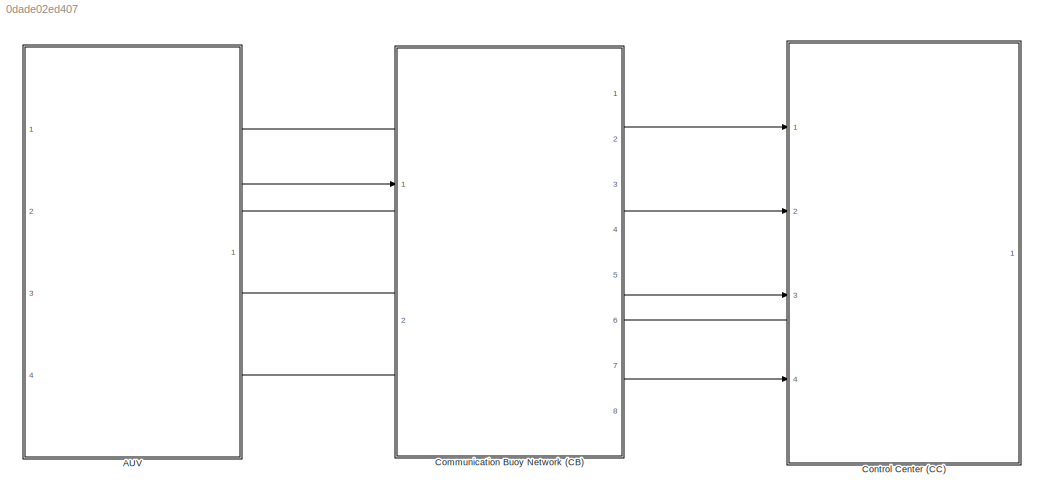
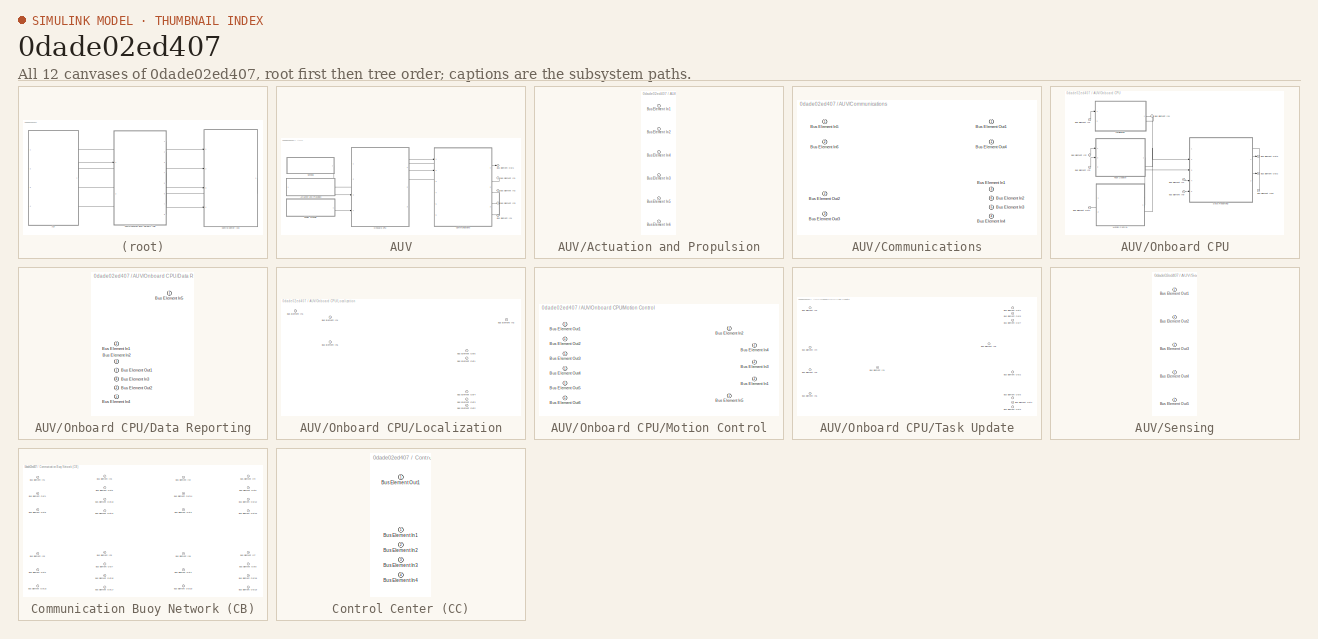
[diagram: thumbnail index - all 12 canvases of the model, root first then tree order]
MODEL slx_0dade02ed407
KIND model
CONFIG AbsTol = auto
CONFIG EnableMultiTasking = off
CONFIG FixedStep = auto
CONFIG MaxStep = auto
CONFIG MinStep = auto
CONFIG RelTol = 1e-3
CONFIG SampleTimeConstraint = Unconstrained
CONFIG SolverName = VariableStepAuto
CONFIG StartTime = 0.0
CONFIG StopTime = 10.0
BLOCK [SubSystem] AUV
  PortSchema = {"entries":[{"content":{"headerSize":26,"margin":15,"minimumSpacing":25,"sides":[{"content":{"connectorIds":[]},"type":"ConnectorPlacement.EquallySpacedRectSide","uuid":"7765e1d4-0dc4-4e3a-8ace-6707e97be0d4"},{"content":{"connectorIds":["Out1","In1","In2","In3","In4"],"side":"RIGHT"},"type":"ConnectorPlacement.EquallySpacedRectSide","uuid":"17453679-37e1-41d9-ae4d-157eecb5c7d5"},{"content":{"conne...<+451ch>
  Ports = [4, 1]
  RequestExecContextInheritance = off
BLOCK [SubSystem] AUV/Actuation and Propulsion
  PortSchema = {"entries":[{"content":{"headerSize":26,"margin":15,"minimumSpacing":25,"sides":[{"content":{"connectorIds":[]},"type":"ConnectorPlacement.EquallySpacedRectSide","uuid":"7765e1d4-0dc4-4e3a-8ace-6707e97be0d4"},{"content":{"connectorIds":["In1"],"side":"RIGHT"},"type":"ConnectorPlacement.EquallySpacedRectSide","uuid":"17453679-37e1-41d9-ae4d-157eecb5c7d5"},{"content":{"connectorIds":[],"side":"TOP"}...<+426ch>
  Ports = [1]
  RequestExecContextInheritance = off
BLOCK [Inport] AUV/Actuation and Propulsion/Bus Element In1
BLOCK [Inport] AUV/Actuation and Propulsion/Bus Element In2
BLOCK [Inport] AUV/Actuation and Propulsion/Bus Element In3
BLOCK [Inport] AUV/Actuation and Propulsion/Bus Element In4
BLOCK [Inport] AUV/Actuation and Propulsion/Bus Element In5
BLOCK [Inport] AUV/Actuation and Propulsion/Bus Element In6
BLOCK [Inport] AUV/Bus Element In1
BLOCK [Inport] AUV/Bus Element In2
  Port = 2
BLOCK [Inport] AUV/Bus Element In3
  Port = 3
BLOCK [Inport] AUV/Bus Element In4
  Port = 4
BLOCK [Outport] AUV/Bus Element Out1
BLOCK [SubSystem] AUV/Communications
  PortSchema = {"entries":[{"content":{"headerSize":26,"margin":15,"minimumSpacing":25,"sides":[{"content":{"connectorIds":["In1","In2","Out2","Out3"]},"type":"ConnectorPlacement.EquallySpacedRectSide","uuid":"5928ce2f-b7da-4eaf-83b8-f1dfd8275719"},{"content":{"connectorIds":["Out1","In3","In6","In5","In4"],"side":"RIGHT"},"type":"ConnectorPlacement.EquallySpacedRectSide","uuid":"1e52cfd1-9d99-4f69-bb2a-b495e37c...<+476ch>
  Ports = [6, 3]
  RequestExecContextInheritance = off
BLOCK [Inport] AUV/Communications/Bus Element In1
  Port = 3
BLOCK [Inport] AUV/Communications/Bus Element In2
  Port = 6
BLOCK [Inport] AUV/Communications/Bus Element In3
  Port = 5
BLOCK [Inport] AUV/Communications/Bus Element In4
  Port = 4
BLOCK [Inport] AUV/Communications/Bus Element In5
BLOCK [Inport] AUV/Communications/Bus Element In6
  Port = 2
BLOCK [Outport] AUV/Communications/Bus Element Out1
BLOCK [Outport] AUV/Communications/Bus Element Out2
  Port = 2
BLOCK [Outport] AUV/Communications/Bus Element Out3
  Port = 3
BLOCK [Outport] AUV/Communications/Bus Element Out4
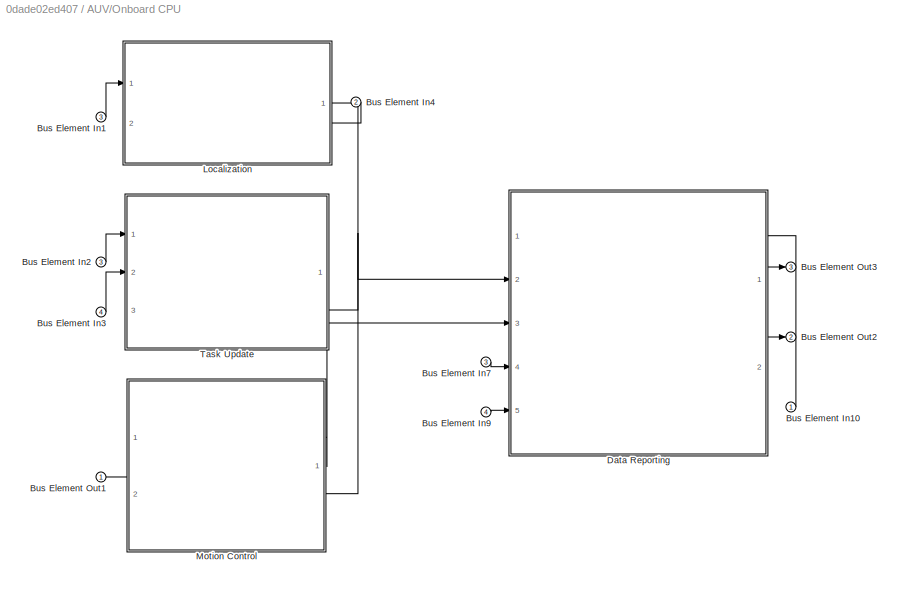
BLOCK [SubSystem] AUV/Onboard CPU
  PortSchema = {"entries":[{"content":{"headerSize":26,"margin":15,"minimumSpacing":25,"sides":[{"content":{"connectorIds":["In3","Out1","In4"]},"type":"ConnectorPlacement.EquallySpacedRectSide","uuid":"7765e1d4-0dc4-4e3a-8ace-6707e97be0d4"},{"content":{"connectorIds":["Out3","Out2","In1","In2"],"side":"RIGHT"},"type":"ConnectorPlacement.EquallySpacedRectSide","uuid":"17453679-37e1-41d9-ae4d-157eecb5c7d5"},{"con...<+464ch>
  Ports = [4, 3]
  RequestExecContextInheritance = off
BLOCK [Inport] AUV/Onboard CPU/Bus Element In1
  Port = 3
BLOCK [Inport] AUV/Onboard CPU/Bus Element In10
BLOCK [Inport] AUV/Onboard CPU/Bus Element In2
  Port = 3
BLOCK [Inport] AUV/Onboard CPU/Bus Element In3
  Port = 4
BLOCK [Inport] AUV/Onboard CPU/Bus Element In4
  Port = 2
BLOCK [Inport] AUV/Onboard CPU/Bus Element In7
  Port = 3
BLOCK [Inport] AUV/Onboard CPU/Bus Element In9
  Port = 4
BLOCK [Outport] AUV/Onboard CPU/Bus Element Out1
BLOCK [Outport] AUV/Onboard CPU/Bus Element Out2
  Port = 2
BLOCK [Outport] AUV/Onboard CPU/Bus Element Out3
  Port = 3
BLOCK [SubSystem] AUV/Onboard CPU/Data Reporting
  PortSchema = {"entries":[{"content":{"headerSize":26,"margin":15,"minimumSpacing":25,"sides":[{"content":{"connectorIds":["In2","In3","In4","In5"]},"type":"ConnectorPlacement.EquallySpacedRectSide","uuid":"6e074b9a-b44f-4117-a210-2e4c10325222"},{"content":{"connectorIds":["Out1","Out2","In1"],"side":"RIGHT"},"type":"ConnectorPlacement.EquallySpacedRectSide","uuid":"4713ac81-953f-4b10-9848-f535a4d44b72"},{"cont...<+463ch>
  Ports = [5, 2]
  RequestExecContextInheritance = off
BLOCK [Inport] AUV/Onboard CPU/Data Reporting/Bus Element In1
  Port = 2
BLOCK [Inport] AUV/Onboard CPU/Data Reporting/Bus Element In2
  Port = 3
BLOCK [Inport] AUV/Onboard CPU/Data Reporting/Bus Element In3
  Port = 4
BLOCK [Inport] AUV/Onboard CPU/Data Reporting/Bus Element In4
  Port = 5
BLOCK [Inport] AUV/Onboard CPU/Data Reporting/Bus Element In5
BLOCK [Outport] AUV/Onboard CPU/Data Reporting/Bus Element Out1
BLOCK [Outport] AUV/Onboard CPU/Data Reporting/Bus Element Out2
  Port = 2
BLOCK [SubSystem] AUV/Onboard CPU/Localization
  PortSchema = {"entries":[{"content":{"headerSize":26,"margin":15,"minimumSpacing":25,"sides":[{"content":{"connectorIds":["In1"]},"type":"ConnectorPlacement.EquallySpacedRectSide","uuid":"d7fd4b25-d7f9-480e-9c1f-219c1b7124b0"},{"content":{"connectorIds":["In2","Out1"],"side":"RIGHT"},"type":"ConnectorPlacement.EquallySpacedRectSide","uuid":"9844324b-a41b-4b87-b09a-567239ca4ffd"},{"content":{"connectorIds":[],"...<+582ch>
  Ports = [2, 1]
  RequestExecContextInheritance = off
BLOCK [Inport] AUV/Onboard CPU/Localization/Bus Element In1
BLOCK [Inport] AUV/Onboard CPU/Localization/Bus Element In2
  Port = 2
BLOCK [Inport] AUV/Onboard CPU/Localization/Bus Element In4
BLOCK [Inport] AUV/Onboard CPU/Localization/Bus Element In5
BLOCK [Outport] AUV/Onboard CPU/Localization/Bus Element Out1
BLOCK [Outport] AUV/Onboard CPU/Localization/Bus Element Out2
BLOCK [Outport] AUV/Onboard CPU/Localization/Bus Element Out3
BLOCK [Outport] AUV/Onboard CPU/Localization/Bus Element Out4
BLOCK [Outport] AUV/Onboard CPU/Localization/Bus Element Out5
BLOCK [SubSystem] AUV/Onboard CPU/Motion Control
  PortSchema = {"entries":[{"content":{"headerSize":26,"margin":15,"minimumSpacing":25,"sides":[{"content":{"connectorIds":["Out1"]},"type":"ConnectorPlacement.EquallySpacedRectSide","uuid":"d7fd4b25-d7f9-480e-9c1f-219c1b7124b0"},{"content":{"connectorIds":["In2","In1"],"side":"RIGHT"},"type":"ConnectorPlacement.EquallySpacedRectSide","uuid":"9844324b-a41b-4b87-b09a-567239ca4ffd"},{"content":{"connectorIds":[],"...<+438ch>
  Ports = [2, 1]
  RequestExecContextInheritance = off
BLOCK [Inport] AUV/Onboard CPU/Motion Control/Bus Element In1
  Port = 2
BLOCK [Inport] AUV/Onboard CPU/Motion Control/Bus Element In2
BLOCK [Inport] AUV/Onboard CPU/Motion Control/Bus Element In3
  Port = 2
BLOCK [Inport] AUV/Onboard CPU/Motion Control/Bus Element In4
  Port = 2
BLOCK [Inport] AUV/Onboard CPU/Motion Control/Bus Element In5
BLOCK [Outport] AUV/Onboard CPU/Motion Control/Bus Element Out1
BLOCK [Outport] AUV/Onboard CPU/Motion Control/Bus Element Out2
BLOCK [Outport] AUV/Onboard CPU/Motion Control/Bus Element Out3
BLOCK [Outport] AUV/Onboard CPU/Motion Control/Bus Element Out4
BLOCK [Outport] AUV/Onboard CPU/Motion Control/Bus Element Out5
BLOCK [Outport] AUV/Onboard CPU/Motion Control/Bus Element Out6
BLOCK [SubSystem] AUV/Onboard CPU/Task Update
  PortSchema = {"entries":[{"content":{"headerSize":26,"margin":15,"minimumSpacing":25,"sides":[{"content":{"connectorIds":["In1","In2"]},"type":"ConnectorPlacement.EquallySpacedRectSide","uuid":"d7fd4b25-d7f9-480e-9c1f-219c1b7124b0"},{"content":{"connectorIds":["In3","Out1"],"side":"RIGHT"},"type":"ConnectorPlacement.EquallySpacedRectSide","uuid":"9844324b-a41b-4b87-b09a-567239ca4ffd"},{"content":{"connectorIds...<+588ch>
  Ports = [3, 1]
  RequestExecContextInheritance = off
BLOCK [Inport] AUV/Onboard CPU/Task Update/Bus Element In1
  Port = 3
BLOCK [Inport] AUV/Onboard CPU/Task Update/Bus Element In2
BLOCK [Inport] AUV/Onboard CPU/Task Update/Bus Element In3
  Port = 2
BLOCK [Inport] AUV/Onboard CPU/Task Update/Bus Element In4
BLOCK [Inport] AUV/Onboard CPU/Task Update/Bus Element In5
BLOCK [Inport] AUV/Onboard CPU/Task Update/Bus Element In6
  Port = 3
BLOCK [Outport] AUV/Onboard CPU/Task Update/Bus Element Out1
BLOCK [Outport] AUV/Onboard CPU/Task Update/Bus Element Out2
BLOCK [Outport] AUV/Onboard CPU/Task Update/Bus Element Out3
BLOCK [Outport] AUV/Onboard CPU/Task Update/Bus Element Out4
BLOCK [Outport] AUV/Onboard CPU/Task Update/Bus Element Out5
BLOCK [Outport] AUV/Onboard CPU/Task Update/Bus Element Out6
BLOCK [Outport] AUV/Onboard CPU/Task Update/Bus Element Out7
BLOCK [ModelReference] AUV/Power Module
  ModelNameDialog = AUV_PM
  ModelReferenceVersion = 1.7
  PortSchema = {"entries":[{"content":{"headerSize":38,"margin":15,"minimumSpacing":25,"sides":[{"content":{"connectorIds":[]},"type":"ConnectorPlacement.EquallySpacedRectSide","uuid":"7765e1d4-0dc4-4e3a-8ace-6707e97be0d4"},{"content":{"connectorIds":["Out1"],"side":"RIGHT"},"type":"ConnectorPlacement.EquallySpacedRectSide","uuid":"17453679-37e1-41d9-ae4d-157eecb5c7d5"},{"content":{"connectorIds":[],"side":"TOP"...<+427ch>
  Ports = [0, 1]
BLOCK [SubSystem] AUV/Sensing
  PortSchema = {"entries":[{"content":{"headerSize":26,"margin":15,"minimumSpacing":25,"sides":[{"content":{"connectorIds":[]},"type":"ConnectorPlacement.EquallySpacedRectSide","uuid":"7765e1d4-0dc4-4e3a-8ace-6707e97be0d4"},{"content":{"connectorIds":["Out1"],"side":"RIGHT"},"type":"ConnectorPlacement.EquallySpacedRectSide","uuid":"17453679-37e1-41d9-ae4d-157eecb5c7d5"},{"content":{"connectorIds":[],"side":"TOP"...<+427ch>
  Ports = [0, 1]
  RequestExecContextInheritance = off
BLOCK [Outport] AUV/Sensing/Bus Element Out1
BLOCK [Outport] AUV/Sensing/Bus Element Out2
BLOCK [Outport] AUV/Sensing/Bus Element Out3
BLOCK [Outport] AUV/Sensing/Bus Element Out4
BLOCK [Outport] AUV/Sensing/Bus Element Out5
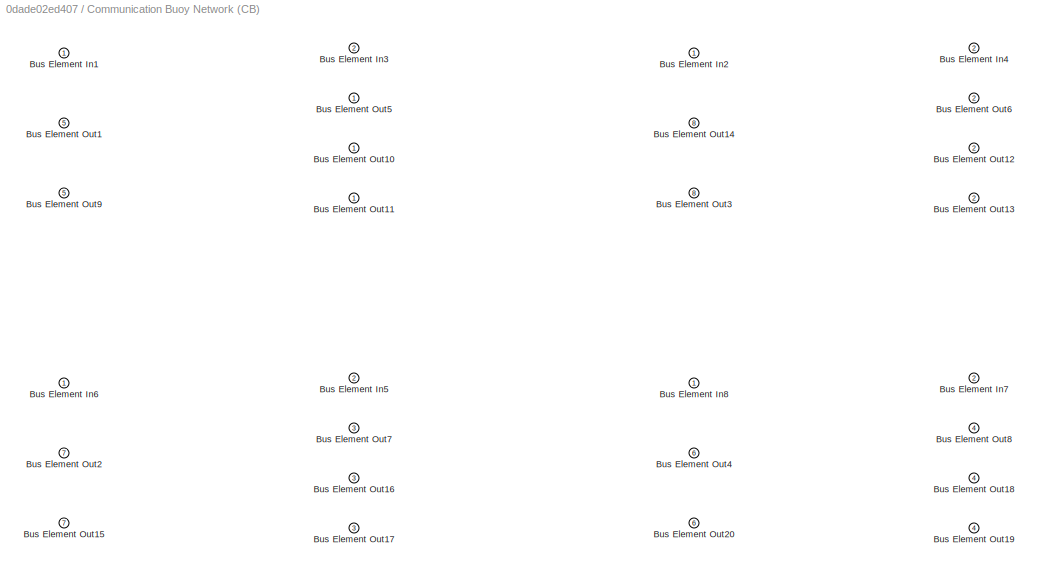
BLOCK [SubSystem] Communication Buoy Network (CB)
  PortSchema = {"entries":[{"content":{"headerSize":26,"margin":15,"minimumSpacing":25,"sides":[{"content":{"connectorIds":["In1","Out5","Out8","Out7","Out6"]},"type":"ConnectorPlacement.EquallySpacedRectSide","uuid":"7765e1d4-0dc4-4e3a-8ace-6707e97be0d4"},{"content":{"connectorIds":["In2","Out1","Out2","Out3","Out4"],"side":"RIGHT"},"type":"ConnectorPlacement.EquallySpacedRectSide","uuid":"17453679-37e1-41d9-ae...<+487ch>
  Ports = [2, 8]
  RequestExecContextInheritance = off
BLOCK [Inport] Communication Buoy Network (CB)/Bus Element In1
BLOCK [Inport] Communication Buoy Network (CB)/Bus Element In2
BLOCK [Inport] Communication Buoy Network (CB)/Bus Element In3
  Port = 2
BLOCK [Inport] Communication Buoy Network (CB)/Bus Element In4
  Port = 2
BLOCK [Inport] Communication Buoy Network (CB)/Bus Element In5
  Port = 2
BLOCK [Inport] Communication Buoy Network (CB)/Bus Element In6
BLOCK [Inport] Communication Buoy Network (CB)/Bus Element In7
  Port = 2
BLOCK [Inport] Communication Buoy Network (CB)/Bus Element In8
BLOCK [Outport] Communication Buoy Network (CB)/Bus Element Out1
  Port = 5
BLOCK [Outport] Communication Buoy Network (CB)/Bus Element Out10
BLOCK [Outport] Communication Buoy Network (CB)/Bus Element Out11
BLOCK [Outport] Communication Buoy Network (CB)/Bus Element Out12
  Port = 2
BLOCK [Outport] Communication Buoy Network (CB)/Bus Element Out13
  Port = 2
BLOCK [Outport] Communication Buoy Network (CB)/Bus Element Out14
  Port = 8
BLOCK [Outport] Communication Buoy Network (CB)/Bus Element Out15
  Port = 7
BLOCK [Outport] Communication Buoy Network (CB)/Bus Element Out16
  Port = 3
BLOCK [Outport] Communication Buoy Network (CB)/Bus Element Out17
  Port = 3
BLOCK [Outport] Communication Buoy Network (CB)/Bus Element Out18
  Port = 4
BLOCK [Outport] Communication Buoy Network (CB)/Bus Element Out19
  Port = 4
BLOCK [Outport] Communication Buoy Network (CB)/Bus Element Out2
  Port = 7
BLOCK [Outport] Communication Buoy Network (CB)/Bus Element Out20
  Port = 6
BLOCK [Outport] Communication Buoy Network (CB)/Bus Element Out3
  Port = 8
BLOCK [Outport] Communication Buoy Network (CB)/Bus Element Out4
  Port = 6
BLOCK [Outport] Communication Buoy Network (CB)/Bus Element Out5
BLOCK [Outport] Communication Buoy Network (CB)/Bus Element Out6
  Port = 2
BLOCK [Outport] Communication Buoy Network (CB)/Bus Element Out7
  Port = 3
BLOCK [Outport] Communication Buoy Network (CB)/Bus Element Out8
  Port = 4
BLOCK [Outport] Communication Buoy Network (CB)/Bus Element Out9
  Port = 5
BLOCK [SubSystem] Control Center (CC)
  PortSchema = {"entries":[{"content":{"headerSize":26,"margin":15,"minimumSpacing":25,"sides":[{"content":{"connectorIds":["Out1","In1","In2","In3","In4"]},"type":"ConnectorPlacement.EquallySpacedRectSide","uuid":"5928ce2f-b7da-4eaf-83b8-f1dfd8275719"},{"content":{"connectorIds":[],"side":"RIGHT"},"type":"ConnectorPlacement.EquallySpacedRectSide","uuid":"1e52cfd1-9d99-4f69-bb2a-b495e37ce87e"},{"content":{"conne...<+451ch>
  Ports = [4, 1]
  RequestExecContextInheritance = off
BLOCK [Inport] Control Center (CC)/Bus Element In1
BLOCK [Inport] Control Center (CC)/Bus Element In2
  Port = 2
BLOCK [Inport] Control Center (CC)/Bus Element In3
  Port = 3
BLOCK [Inport] Control Center (CC)/Bus Element In4
  Port = 4
BLOCK [Outport] Control Center (CC)/Bus Element Out1
LINE AUV/Bus Element In1:1 -> AUV/Communications:3
LINE AUV/Bus Element In2:1 -> AUV/Communications:6
LINE AUV/Bus Element In3:1 -> AUV/Communications:5
LINE AUV/Bus Element In4:1 -> AUV/Communications:4
LINE AUV/Communications:1 -> AUV/Bus Element Out1:1
LINE AUV/Communications:2 -> AUV/Onboard CPU:1
LINE AUV/Communications:3 -> AUV/Onboard CPU:2
LINE AUV/Onboard CPU/Bus Element In10:1 -> AUV/Onboard CPU/Data Reporting:1
LINE AUV/Onboard CPU/Bus Element In1:1 -> AUV/Onboard CPU/Localization:1
LINE AUV/Onboard CPU/Bus Element In2:1 -> AUV/Onboard CPU/Task Update:1
LINE AUV/Onboard CPU/Bus Element In3:1 -> AUV/Onboard CPU/Task Update:2
LINE AUV/Onboard CPU/Bus Element In4:1 -> AUV/Onboard CPU/Localization:2
LINE AUV/Onboard CPU/Bus Element In7:1 -> AUV/Onboard CPU/Data Reporting:4
LINE AUV/Onboard CPU/Bus Element In9:1 -> AUV/Onboard CPU/Data Reporting:5
LINE AUV/Onboard CPU/Data Reporting:1 -> AUV/Onboard CPU/Bus Element Out3:1
LINE AUV/Onboard CPU/Data Reporting:2 -> AUV/Onboard CPU/Bus Element Out2:1
NET AUV/Onboard CPU/Localization:1 -> AUV/Onboard CPU/Data Reporting:2, AUV/Onboard CPU/Motion Control:2, AUV/Onboard CPU/Task Update:3
LINE AUV/Onboard CPU/Motion Control:1 -> AUV/Onboard CPU/Bus Element Out1:1
NET AUV/Onboard CPU/Task Update:1 -> AUV/Onboard CPU/Data Reporting:3, AUV/Onboard CPU/Motion Control:1
LINE AUV/Onboard CPU:1 -> AUV/Actuation and Propulsion:1
LINE AUV/Onboard CPU:2 -> AUV/Communications:2
LINE AUV/Onboard CPU:3 -> AUV/Communications:1
LINE AUV/Power Module:1 -> AUV/Onboard CPU:4
LINE AUV/Sensing:1 -> AUV/Onboard CPU:3
LINE AUV:1 -> Communication Buoy Network (CB):1
LINE Communication Buoy Network (CB):1 -> Control Center (CC):1
LINE Communication Buoy Network (CB):2 -> Control Center (CC):2
LINE Communication Buoy Network (CB):3 -> Control Center (CC):3
LINE Communication Buoy Network (CB):4 -> Control Center (CC):4
LINE Communication Buoy Network (CB):5 -> AUV:1
LINE Communication Buoy Network (CB):6 -> AUV:4
LINE Communication Buoy Network (CB):7 -> AUV:3
LINE Communication Buoy Network (CB):8 -> AUV:2
LINE Control Center (CC):1 -> Communication Buoy Network (CB):2
note: NET lines group one-source signal fan-out (src -> all destinations, sorted); 1:1 wires keep LINE
